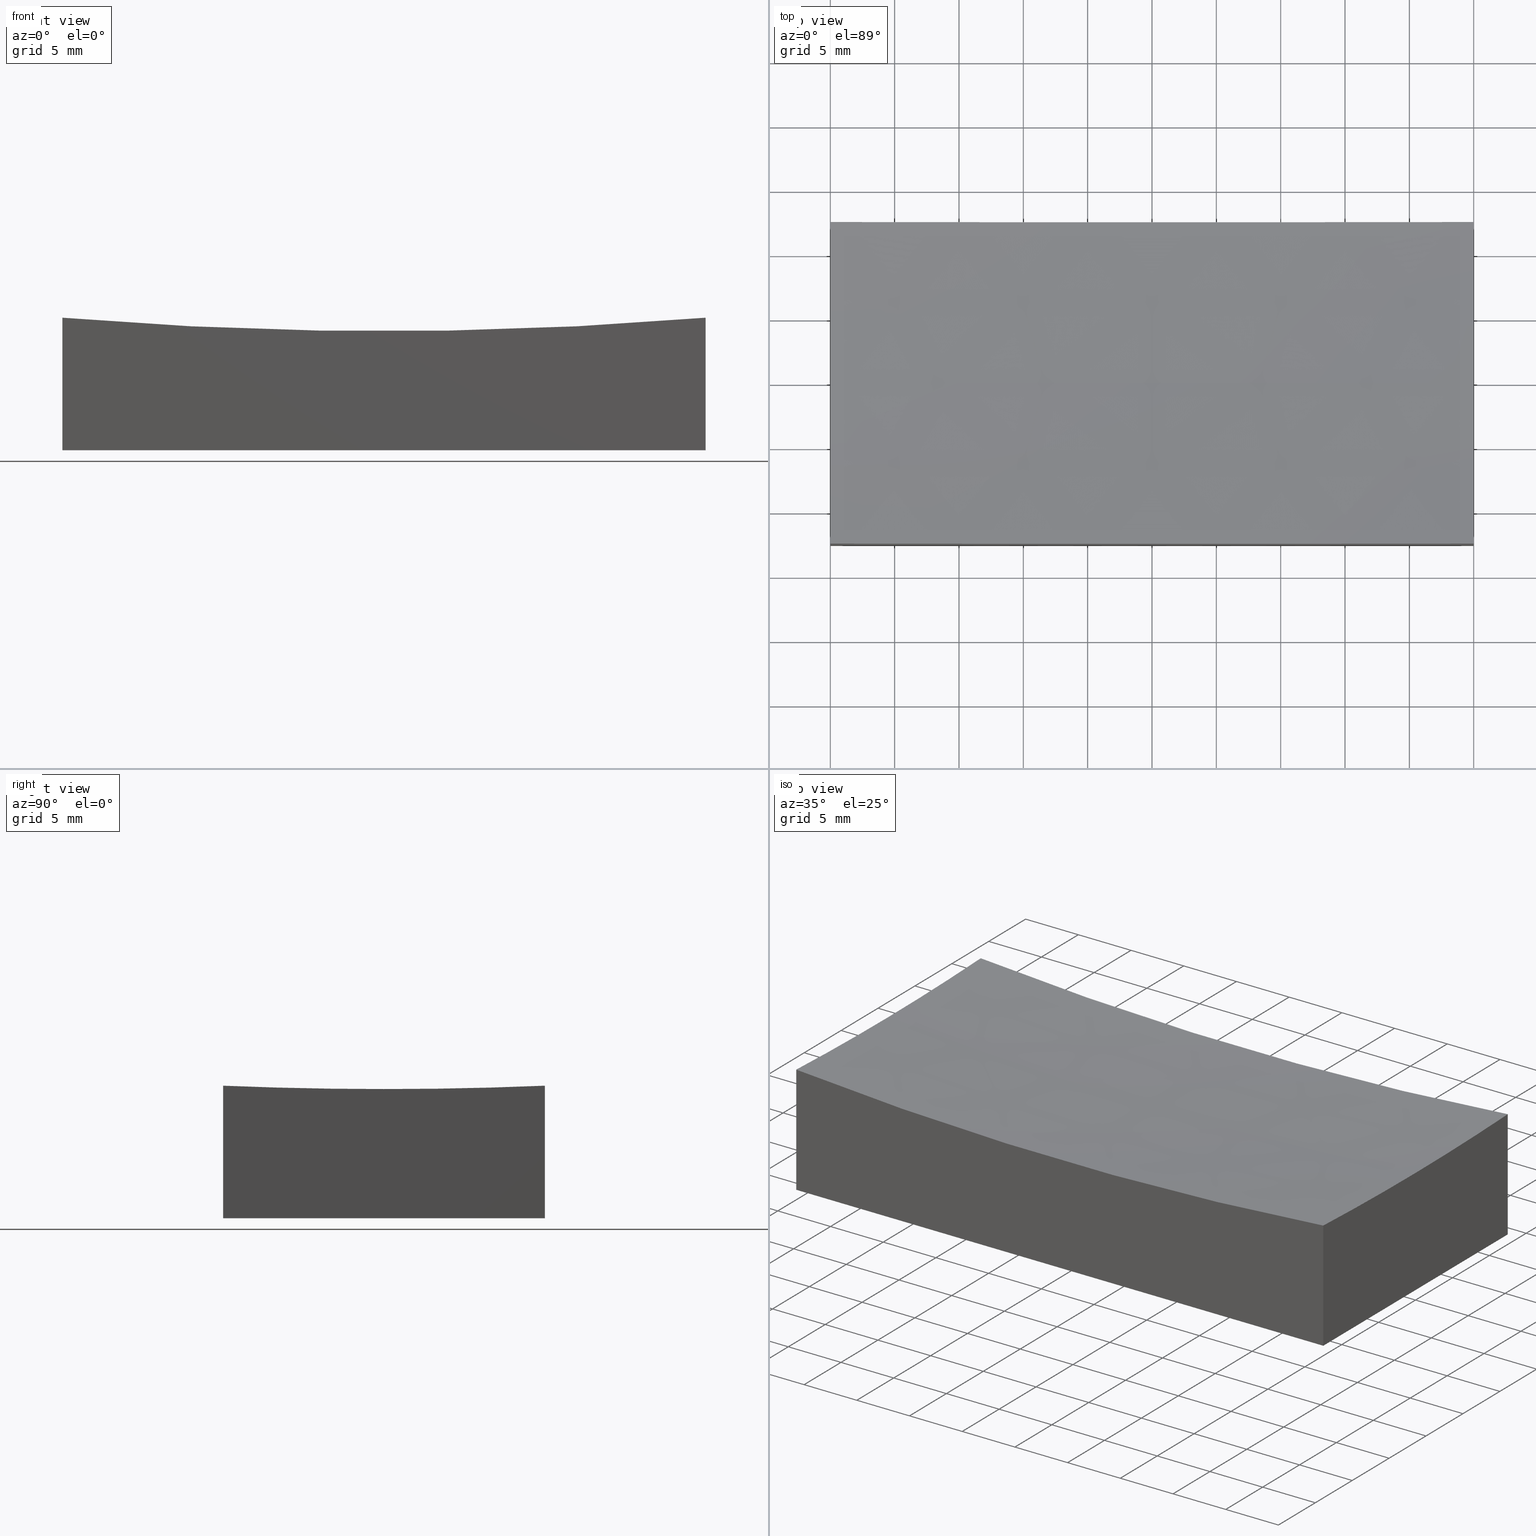
[diagram: canonical four-view strip — front | top / right | iso, engineering-drawing reading convention]
A machine part, canonical four-view strip (front | top / right | iso — engineering-drawing reading convention). The complete STEP part file that produces these views, byte-faithful:
ISO-10303-21;
HEADER;
FILE_DESCRIPTION (( 'STEP AP214' ),
    '1' );
FILE_NAME ('GM13-50x25-150.STEP',
    '2024-08-13T03:15:51',
    ( 'Windows User' ),
    ( 'P R C' ),
    'SwSTEP 2.0',
    'SolidWorks 2022',
    '' );
FILE_SCHEMA (( 'AUTOMOTIVE_DESIGN' ));
ENDSEC;

DATA;
#1 = DIRECTION ( 'NONE',  ( 0.000000000000000000, 0.000000000000000000, 1.000000000000000000 ) ) ;
#2 = VECTOR ( 'NONE', #145, 1000.000000000000000 ) ;
#3 = AXIS2_PLACEMENT_3D ( 'NONE', #167, #114, #79 ) ;
#4 = UNCERTAINTY_MEASURE_WITH_UNIT (LENGTH_MEASURE( 1.000000000000000082E-05 ), #31, 'distance_accuracy_value', 'NONE');
#5 = CARTESIAN_POINT ( 'NONE',  ( 25.00000000000000000, -6.938893903907228378E-15, 309.0000000000000000 ) ) ;
#6 = CARTESIAN_POINT ( 'NONE',  ( 0.000000000000000000, 0.000000000000000000, 309.0000000000000000 ) ) ;
#7 = EDGE_CURVE ( 'NONE', #174, #86, #236, .T. ) ;
#8 = CARTESIAN_POINT ( 'NONE',  ( -25.00000000000000000, 12.50000000000000000, 0.000000000000000000 ) ) ;
#9 = DIRECTION ( 'NONE',  ( 0.000000000000000000, -1.000000000000000000, -0.000000000000000000 ) ) ;
#10 = ORIENTED_EDGE ( 'NONE', *, *, #212, .T. ) ;
#11 = CARTESIAN_POINT ( 'NONE',  ( -25.00000000000000000, 12.50000000000000000, 15.00000000000000000 ) ) ;
#12 = VECTOR ( 'NONE', #35, 1000.000000000000000 ) ;
#13 = COLOUR_RGB ( '',1.000000000000000000, 1.000000000000000000, 1.000000000000000000 ) ;
#14 = FACE_OUTER_BOUND ( 'NONE', #175, .T. ) ;
#15 = CARTESIAN_POINT ( 'NONE',  ( -24.99999999999999645, -12.50000000000000000, 0.000000000000000000 ) ) ;
#16 =( LENGTH_UNIT ( ) NAMED_UNIT ( * ) SI_UNIT ( .MILLI., .METRE. ) );
#17 = DIRECTION ( 'NONE',  ( 8.881784197001250746E-15, 0.000000000000000000, 1.000000000000000000 ) ) ;
#18 = APPLICATION_PROTOCOL_DEFINITION ( 'draft international standard', 'automotive_design', 1998, #23 ) ;
#19 = CARTESIAN_POINT ( 'NONE',  ( -25.00000000000000000, -3.469446951953614189E-15, 309.0000000000000000 ) ) ;
#20 = AXIS2_PLACEMENT_3D ( 'NONE', #58, #108, #55 ) ;
#21 = ORIENTED_EDGE ( 'NONE', *, *, #233, .F. ) ;
#22 = MECHANICAL_DESIGN_GEOMETRIC_PRESENTATION_REPRESENTATION (  '', ( #107 ), #225 ) ;
#23 = APPLICATION_CONTEXT ( 'automotive_design' ) ;
#24 = ORIENTED_EDGE ( 'NONE', *, *, #203, .F. ) ;
#25 = CARTESIAN_POINT ( 'NONE',  ( 25.00000000000000355, 12.50000000000000000, 10.30492136628702227 ) ) ;
#26 = ORIENTED_EDGE ( 'NONE', *, *, #189, .F. ) ;
#27 = ADVANCED_FACE ( 'NONE', ( #237 ), #168, .F. ) ;
#28 = ORIENTED_EDGE ( 'NONE', *, *, #155, .T. ) ;
#29 = ORIENTED_EDGE ( 'NONE', *, *, #212, .F. ) ;
#30 = LINE ( 'NONE', #124, #150 ) ;
#31 =( LENGTH_UNIT ( ) NAMED_UNIT ( * ) SI_UNIT ( .MILLI., .METRE. ) );
#32 = AXIS2_PLACEMENT_3D ( 'NONE', #153, #1, #230 ) ;
#33 = PLANE ( 'NONE',  #136 ) ;
#34 = PLANE ( 'NONE',  #94 ) ;
#35 = DIRECTION ( 'NONE',  ( 2.775557561562891351E-16, 1.000000000000000000, -0.000000000000000000 ) ) ;
#36 = AXIS2_PLACEMENT_3D ( 'NONE', #110, #53, #148 ) ;
#37 = LINE ( 'NONE', #245, #2 ) ;
#38 = PRODUCT_RELATED_PRODUCT_CATEGORY ( 'part', '', ( #118 ) ) ;
#39 = FACE_OUTER_BOUND ( 'NONE', #214, .T. ) ;
#40 = SURFACE_SIDE_STYLE ('',( #188 ) ) ;
#41 = CARTESIAN_POINT ( 'NONE',  ( 0.000000000000000000, 0.000000000000000000, 0.000000000000000000 ) ) ;
#42 = EDGE_LOOP ( 'NONE', ( #196, #159, #117, #70 ) ) ;
#43 = FACE_OUTER_BOUND ( 'NONE', #42, .T. ) ;
#44 = CIRCLE ( 'NONE', #181, 298.9565185775349505 ) ;
#45 = PRODUCT_CONTEXT ( 'NONE', #23, 'mechanical' ) ;
#46 = AXIS2_PLACEMENT_3D ( 'NONE', #187, #208, #93 ) ;
#47 = DIRECTION ( 'NONE',  ( -1.392622700503039140E-16, 1.000000000000000000, 0.000000000000000000 ) ) ;
#48 = VERTEX_POINT ( 'NONE', #160 ) ;
#49 = ORIENTED_EDGE ( 'NONE', *, *, #151, .T. ) ;
#50 = VERTEX_POINT ( 'NONE', #240 ) ;
#51 = DIRECTION ( 'NONE',  ( -2.775557561562891351E-16, -1.000000000000000000, 0.000000000000000000 ) ) ;
#52 = CARTESIAN_POINT ( 'NONE',  ( -25.00000000000000000, -3.061616997868383043E-15, 10.04348142246502817 ) ) ;
#53 = DIRECTION ( 'NONE',  ( 1.224646799147353207E-16, -1.000000000000000000, -1.592996844355151900E-35 ) ) ;
#54 =( GEOMETRIC_REPRESENTATION_CONTEXT ( 3 ) GLOBAL_UNCERTAINTY_ASSIGNED_CONTEXT ( ( #4 ) ) GLOBAL_UNIT_ASSIGNED_CONTEXT ( ( #31, #130, #105 ) ) REPRESENTATION_CONTEXT ( 'NONE', 'WORKASPACE' ) );
#55 = DIRECTION ( 'NONE',  ( 0.000000000000000000, 0.000000000000000000, 1.000000000000000000 ) ) ;
#56 = EDGE_CURVE ( 'NONE', #97, #242, #30, .T. ) ;
#57 = CARTESIAN_POINT ( 'NONE',  ( -25.00000000000000000, 12.50000000000000000, 0.000000000000000000 ) ) ;
#58 = CARTESIAN_POINT ( 'NONE',  ( 0.000000000000000000, 0.000000000000000000, 309.0000000000000000 ) ) ;
#59 = FILL_AREA_STYLE_COLOUR ( '', #13 ) ;
#60 = PRODUCT_DEFINITION ( 'δ֪', '', #61, #65 ) ;
#61 = PRODUCT_DEFINITION_FORMATION_WITH_SPECIFIED_SOURCE ( '�κ�', '', #118, .NOT_KNOWN. ) ;
#62 = DIRECTION ( 'NONE',  ( -1.392622700503039140E-16, 1.000000000000000000, 0.000000000000000000 ) ) ;
#63 = DIRECTION ( 'NONE',  ( -0.000000000000000000, -0.000000000000000000, -1.000000000000000000 ) ) ;
#64 = ADVANCED_BREP_SHAPE_REPRESENTATION ( 'GM13-50x25-150', ( #169, #32 ), #142 ) ;
#65 = PRODUCT_DEFINITION_CONTEXT ( 'detailed design', #80, 'design' ) ;
#66 = ADVANCED_FACE ( 'NONE', ( #83 ), #141, .F. ) ;
#67 = ORIENTED_EDGE ( 'NONE', *, *, #243, .T. ) ;
#68 = ORIENTED_EDGE ( 'NONE', *, *, #106, .T. ) ;
#69 = ORIENTED_EDGE ( 'NONE', *, *, #106, .F. ) ;
#70 = ORIENTED_EDGE ( 'NONE', *, *, #193, .F. ) ;
#71 = VERTEX_POINT ( 'NONE', #25 ) ;
#72 = EDGE_CURVE ( 'NONE', #139, #158, #44, .T. ) ;
#73 = CARTESIAN_POINT ( 'NONE',  ( 24.99999999999999645, -12.50000000000000000, 10.30492136628696720 ) ) ;
#74 = CARTESIAN_POINT ( 'NONE',  ( 25.00000000000000000, 0.000000000000000000, 10.04348142246502817 ) ) ;
#75 = CARTESIAN_POINT ( 'NONE',  ( 25.00000000000000000, -6.938893903907228378E-15, 309.0000000000000000 ) ) ;
#76 = FACE_OUTER_BOUND ( 'NONE', #85, .T. ) ;
#77 = CIRCLE ( 'NONE', #186, 298.9565185775349505 ) ;
#78 = ORIENTED_EDGE ( 'NONE', *, *, #56, .F. ) ;
#79 = DIRECTION ( 'NONE',  ( 0.000000000000000000, 0.000000000000000000, -1.000000000000000000 ) ) ;
#80 = APPLICATION_CONTEXT ( 'automotive_design' ) ;
#81 = EDGE_CURVE ( 'NONE', #97, #100, #172, .T. ) ;
#82 = ORIENTED_EDGE ( 'NONE', *, *, #178, .T. ) ;
#83 = FACE_OUTER_BOUND ( 'NONE', #210, .T. ) ;
#84 = ORIENTED_EDGE ( 'NONE', *, *, #233, .T. ) ;
#85 = EDGE_LOOP ( 'NONE', ( #217, #28, #195, #29, #173 ) ) ;
#86 = VERTEX_POINT ( 'NONE', #248 ) ;
#87 = SURFACE_STYLE_USAGE ( .BOTH. , #176 ) ;
#88 = CARTESIAN_POINT ( 'NONE',  ( 0.000000000000000000, 0.000000000000000000, 309.0000000000000000 ) ) ;
#89 = VECTOR ( 'NONE', #101, 1000.000000000000000 ) ;
#90 = FACE_OUTER_BOUND ( 'NONE', #171, .T. ) ;
#91 = DIRECTION ( 'NONE',  ( 1.000000000000000000, 0.000000000000000000, 0.000000000000000000 ) ) ;
#92 =( NAMED_UNIT ( * ) SI_UNIT ( $, .STERADIAN. ) SOLID_ANGLE_UNIT ( ) );
#93 = DIRECTION ( 'NONE',  ( 0.000000000000000000, -0.000000000000000000, -1.000000000000000000 ) ) ;
#94 = AXIS2_PLACEMENT_3D ( 'NONE', #202, #164, #222 ) ;
#95 =( NAMED_UNIT ( * ) PLANE_ANGLE_UNIT ( ) SI_UNIT ( $, .RADIAN. ) );
#96 = FILL_AREA_STYLE ('',( #59 ) ) ;
#97 = VERTEX_POINT ( 'NONE', #73 ) ;
#98 = ADVANCED_FACE ( 'NONE', ( #76 ), #34, .F. ) ;
#99 = VECTOR ( 'NONE', #63, 1000.000000000000000 ) ;
#100 = VERTEX_POINT ( 'NONE', #74 ) ;
#101 = DIRECTION ( 'NONE',  ( 1.387778780781445676E-16, -1.000000000000000000, 0.000000000000000000 ) ) ;
#102 = ORIENTED_EDGE ( 'NONE', *, *, #193, .T. ) ;
#103 = AXIS2_PLACEMENT_3D ( 'NONE', #41, #119, #166 ) ;
#104 = ORIENTED_EDGE ( 'NONE', *, *, #251, .T. ) ;
#105 =( NAMED_UNIT ( * ) SI_UNIT ( $, .STERADIAN. ) SOLID_ANGLE_UNIT ( ) );
#106 = EDGE_CURVE ( 'NONE', #71, #48, #37, .T. ) ;
#107 = STYLED_ITEM ( 'NONE', ( #115 ), #64 ) ;
#108 = DIRECTION ( 'NONE',  ( 0.000000000000000000, 1.000000000000000000, -0.000000000000000000 ) ) ;
#109 = SPHERICAL_SURFACE ( 'NONE', #235, 300.0000000000000000 ) ;
#110 = CARTESIAN_POINT ( 'NONE',  ( 0.000000000000000000, 0.000000000000000000, 309.0000000000000000 ) ) ;
#111 = CIRCLE ( 'NONE', #20, 300.0000000000000000 ) ;
#112 = DIRECTION ( 'NONE',  ( 0.000000000000000000, -0.000000000000000000, 1.000000000000000000 ) ) ;
#113 = SURFACE_STYLE_USAGE ( .BOTH. , #40 ) ;
#114 = DIRECTION ( 'NONE',  ( -0.000000000000000000, 1.000000000000000000, -0.000000000000000000 ) ) ;
#115 = PRESENTATION_STYLE_ASSIGNMENT (( #113 ) ) ;
#116 = EDGE_CURVE ( 'NONE', #100, #50, #111, .T. ) ;
#117 = ORIENTED_EDGE ( 'NONE', *, *, #178, .F. ) ;
#118 = PRODUCT ( 'GM13-50x25-150', 'GM13-50x25-150', '', ( #45 ) ) ;
#119 = DIRECTION ( 'NONE',  ( -0.000000000000000000, 0.000000000000000000, 1.000000000000000000 ) ) ;
#120 = DIRECTION ( 'NONE',  ( 1.000000000000000000, -2.775557561562891351E-16, -0.000000000000000000 ) ) ;
#121 = ORIENTED_EDGE ( 'NONE', *, *, #81, .F. ) ;
#122 = ORIENTED_EDGE ( 'NONE', *, *, #72, .T. ) ;
#123 = AXIS2_PLACEMENT_3D ( 'NONE', #5, #120, #205 ) ;
#124 = CARTESIAN_POINT ( 'NONE',  ( 24.99999999999999645, -12.50000000000000000, 15.00000000000000000 ) ) ;
#125 = CIRCLE ( 'NONE', #220, 298.9565185775349505 ) ;
#126 = CARTESIAN_POINT ( 'NONE',  ( 25.00000000000000355, 12.50000000000000000, 15.00000000000000000 ) ) ;
#127 = DIRECTION ( 'NONE',  ( 0.000000000000000000, 1.000000000000000000, 0.000000000000000000 ) ) ;
#128 = DIRECTION ( 'NONE',  ( 0.000000000000000000, -1.000000000000000000, -0.000000000000000000 ) ) ;
#129 = AXIS2_PLACEMENT_3D ( 'NONE', #126, #221, #51 ) ;
#130 =( NAMED_UNIT ( * ) PLANE_ANGLE_UNIT ( ) SI_UNIT ( $, .RADIAN. ) );
#131 = LINE ( 'NONE', #204, #12 ) ;
#132 = DIRECTION ( 'NONE',  ( -0.000000000000000000, -1.000000000000000000, -0.000000000000000000 ) ) ;
#133 = SHAPE_DEFINITION_REPRESENTATION ( #227, #64 ) ;
#134 = ORIENTED_EDGE ( 'NONE', *, *, #151, .F. ) ;
#135 = PLANE ( 'NONE',  #46 ) ;
#136 = AXIS2_PLACEMENT_3D ( 'NONE', #247, #127, #112 ) ;
#137 = ORIENTED_EDGE ( 'NONE', *, *, #81, .T. ) ;
#138 = DIRECTION ( 'NONE',  ( 1.000000000000000000, 0.000000000000000000, 0.000000000000000000 ) ) ;
#139 = VERTEX_POINT ( 'NONE', #52 ) ;
#140 = CIRCLE ( 'NONE', #36, 300.0000000000000000 ) ;
#141 = PLANE ( 'NONE',  #129 ) ;
#142 =( GEOMETRIC_REPRESENTATION_CONTEXT ( 3 ) GLOBAL_UNCERTAINTY_ASSIGNED_CONTEXT ( ( #215 ) ) GLOBAL_UNIT_ASSIGNED_CONTEXT ( ( #232, #95, #252 ) ) REPRESENTATION_CONTEXT ( 'NONE', 'WORKASPACE' ) );
#143 = ADVANCED_FACE ( 'NONE', ( #90 ), #33, .F. ) ;
#144 = DIRECTION ( 'NONE',  ( -1.000000000000000000, -1.387778780781445676E-16, 0.000000000000000000 ) ) ;
#145 = DIRECTION ( 'NONE',  ( -0.000000000000000000, -0.000000000000000000, -1.000000000000000000 ) ) ;
#146 = AXIS2_PLACEMENT_3D ( 'NONE', #165, #132, #17 ) ;
#147 = LINE ( 'NONE', #11, #156 ) ;
#148 = DIRECTION ( 'NONE',  ( 1.000000000000000000, 1.224646799147353207E-16, 0.000000000000000000 ) ) ;
#149 = LINE ( 'NONE', #249, #250 ) ;
#150 = VECTOR ( 'NONE', #199, 1000.000000000000000 ) ;
#151 = EDGE_CURVE ( 'NONE', #100, #71, #77, .T. ) ;
#152 = DIRECTION ( 'NONE',  ( -1.000000000000000000, -1.387778780781445676E-16, 0.000000000000000000 ) ) ;
#153 = CARTESIAN_POINT ( 'NONE',  ( 0.000000000000000000, 0.000000000000000000, 0.000000000000000000 ) ) ;
#154 = EDGE_LOOP ( 'NONE', ( #67, #218, #216, #49, #84 ) ) ;
#155 = EDGE_CURVE ( 'NONE', #161, #174, #147, .T. ) ;
#156 = VECTOR ( 'NONE', #246, 1000.000000000000000 ) ;
#157 = VECTOR ( 'NONE', #91, 1000.000000000000000 ) ;
#158 = VERTEX_POINT ( 'NONE', #179 ) ;
#159 = ORIENTED_EDGE ( 'NONE', *, *, #251, .F. ) ;
#160 = CARTESIAN_POINT ( 'NONE',  ( 25.00000000000000355, 12.50000000000000000, 0.000000000000000000 ) ) ;
#161 = VERTEX_POINT ( 'NONE', #226 ) ;
#162 = CIRCLE ( 'NONE', #3, 299.7394702070449171 ) ;
#163 = DIRECTION ( 'NONE',  ( 1.000000000000000000, 0.000000000000000000, 0.000000000000000000 ) ) ;
#164 = DIRECTION ( 'NONE',  ( 1.000000000000000000, 1.387778780781445676E-16, -0.000000000000000000 ) ) ;
#165 = CARTESIAN_POINT ( 'NONE',  ( 0.000000000000000000, -12.49999999999999645, 309.0000000000000000 ) ) ;
#166 = DIRECTION ( 'NONE',  ( 1.000000000000000000, 0.000000000000000000, 0.000000000000000000 ) ) ;
#167 = CARTESIAN_POINT ( 'NONE',  ( 0.000000000000000000, 12.50000000000000000, 309.0000000000000000 ) ) ;
#168 = SPHERICAL_SURFACE ( 'NONE', #192, 300.0000000000000000 ) ;
#169 = MANIFOLD_SOLID_BREP ( '�г�-��ת1', #219 ) ;
#170 = ADVANCED_FACE ( 'NONE', ( #14 ), #109, .F. ) ;
#171 = EDGE_LOOP ( 'NONE', ( #24, #10, #102, #78 ) ) ;
#172 = CIRCLE ( 'NONE', #123, 298.9565185775349505 ) ;
#173 = ORIENTED_EDGE ( 'NONE', *, *, #72, .F. ) ;
#174 = VERTEX_POINT ( 'NONE', #57 ) ;
#175 = EDGE_LOOP ( 'NONE', ( #26, #122, #194, #137, #185 ) ) ;
#176 = SURFACE_SIDE_STYLE ('',( #244 ) ) ;
#177 = PRESENTATION_STYLE_ASSIGNMENT (( #87 ) ) ;
#178 = EDGE_CURVE ( 'NONE', #242, #48, #131, .T. ) ;
#179 = CARTESIAN_POINT ( 'NONE',  ( -24.99999999999998934, -12.49999999999999645, 10.30492136628702227 ) ) ;
#180 = LINE ( 'NONE', #15, #157 ) ;
#181 = AXIS2_PLACEMENT_3D ( 'NONE', #200, #144, #47 ) ;
#182 = DIRECTION ( 'NONE',  ( -2.785245401006078279E-16, -1.000000000000000000, 0.000000000000000000 ) ) ;
#183 =( NAMED_UNIT ( * ) PLANE_ANGLE_UNIT ( ) SI_UNIT ( $, .RADIAN. ) );
#184 = CARTESIAN_POINT ( 'NONE',  ( 24.99999999999999645, -12.50000000000000000, 0.000000000000000000 ) ) ;
#185 = ORIENTED_EDGE ( 'NONE', *, *, #116, .T. ) ;
#186 = AXIS2_PLACEMENT_3D ( 'NONE', #75, #224, #182 ) ;
#187 = CARTESIAN_POINT ( 'NONE',  ( -25.00000000000000000, 12.50000000000000000, 15.00000000000000000 ) ) ;
#188 = SURFACE_STYLE_FILL_AREA ( #96 ) ;
#189 = EDGE_CURVE ( 'NONE', #139, #50, #140, .T. ) ;
#190 = ORIENTED_EDGE ( 'NONE', *, *, #155, .F. ) ;
#191 = UNCERTAINTY_MEASURE_WITH_UNIT (LENGTH_MEASURE( 1.000000000000000082E-05 ), #16, 'distance_accuracy_value', 'NONE');
#192 = AXIS2_PLACEMENT_3D ( 'NONE', #6, #9, #138 ) ;
#193 = EDGE_CURVE ( 'NONE', #86, #242, #180, .T. ) ;
#194 = ORIENTED_EDGE ( 'NONE', *, *, #203, .T. ) ;
#195 = ORIENTED_EDGE ( 'NONE', *, *, #7, .T. ) ;
#196 = ORIENTED_EDGE ( 'NONE', *, *, #7, .F. ) ;
#197 = MECHANICAL_DESIGN_GEOMETRIC_PRESENTATION_REPRESENTATION (  '', ( #198 ), #54 ) ;
#198 = STYLED_ITEM ( 'NONE', ( #177 ), #169 ) ;
#199 = DIRECTION ( 'NONE',  ( -0.000000000000000000, -0.000000000000000000, -1.000000000000000000 ) ) ;
#200 = CARTESIAN_POINT ( 'NONE',  ( -25.00000000000000000, -3.469446951953614189E-15, 309.0000000000000000 ) ) ;
#201 = FILL_AREA_STYLE ('',( #228 ) ) ;
#202 = CARTESIAN_POINT ( 'NONE',  ( -25.00000000000000000, 12.50000000000000000, 15.00000000000000000 ) ) ;
#203 = EDGE_CURVE ( 'NONE', #158, #97, #213, .T. ) ;
#204 = CARTESIAN_POINT ( 'NONE',  ( 25.00000000000000355, 12.50000000000000000, 0.000000000000000000 ) ) ;
#205 = DIRECTION ( 'NONE',  ( -2.785245401006078279E-16, -1.000000000000000000, 0.000000000000000000 ) ) ;
#206 = COLOUR_RGB ( '',1.000000000000000000, 1.000000000000000000, 1.000000000000000000 ) ;
#207 = APPLICATION_PROTOCOL_DEFINITION ( 'draft international standard', 'automotive_design', 1998, #80 ) ;
#208 = DIRECTION ( 'NONE',  ( 0.000000000000000000, -1.000000000000000000, 0.000000000000000000 ) ) ;
#209 = LINE ( 'NONE', #234, #99 ) ;
#210 = EDGE_LOOP ( 'NONE', ( #121, #239, #82, #69, #134 ) ) ;
#211 = PLANE ( 'NONE',  #103 ) ;
#212 = EDGE_CURVE ( 'NONE', #158, #86, #209, .T. ) ;
#213 = CIRCLE ( 'NONE', #146, 299.7394702070449739 ) ;
#214 = EDGE_LOOP ( 'NONE', ( #21, #68, #104, #190 ) ) ;
#215 = UNCERTAINTY_MEASURE_WITH_UNIT (LENGTH_MEASURE( 1.000000000000000082E-05 ), #232, 'distance_accuracy_value', 'NONE');
#216 = ORIENTED_EDGE ( 'NONE', *, *, #116, .F. ) ;
#217 = ORIENTED_EDGE ( 'NONE', *, *, #243, .F. ) ;
#218 = ORIENTED_EDGE ( 'NONE', *, *, #189, .T. ) ;
#219 = CLOSED_SHELL ( 'NONE', ( #27, #98, #143, #66, #223, #238, #170 ) ) ;
#220 = AXIS2_PLACEMENT_3D ( 'NONE', #19, #152, #62 ) ;
#221 = DIRECTION ( 'NONE',  ( -1.000000000000000000, 2.775557561562891351E-16, 0.000000000000000000 ) ) ;
#222 = DIRECTION ( 'NONE',  ( -1.387778780781445676E-16, 1.000000000000000000, 0.000000000000000000 ) ) ;
#223 = ADVANCED_FACE ( 'NONE', ( #39 ), #135, .F. ) ;
#224 = DIRECTION ( 'NONE',  ( 1.000000000000000000, -2.775557561562891351E-16, -0.000000000000000000 ) ) ;
#225 =( GEOMETRIC_REPRESENTATION_CONTEXT ( 3 ) GLOBAL_UNCERTAINTY_ASSIGNED_CONTEXT ( ( #191 ) ) GLOBAL_UNIT_ASSIGNED_CONTEXT ( ( #16, #183, #92 ) ) REPRESENTATION_CONTEXT ( 'NONE', 'WORKASPACE' ) );
#226 = CARTESIAN_POINT ( 'NONE',  ( -25.00000000000000000, 12.50000000000000000, 10.30492136628702227 ) ) ;
#227 = PRODUCT_DEFINITION_SHAPE ( 'NONE', 'NONE',  #60 ) ;
#228 = FILL_AREA_STYLE_COLOUR ( '', #206 ) ;
#229 = DIRECTION ( 'NONE',  ( -1.000000000000000000, -0.000000000000000000, -0.000000000000000000 ) ) ;
#230 = DIRECTION ( 'NONE',  ( 1.000000000000000000, 0.000000000000000000, 0.000000000000000000 ) ) ;
#231 = PRESENTATION_LAYER_ASSIGNMENT (  '', '', ( #107 ) ) ;
#232 =( LENGTH_UNIT ( ) NAMED_UNIT ( * ) SI_UNIT ( .MILLI., .METRE. ) );
#233 = EDGE_CURVE ( 'NONE', #71, #161, #162, .T. ) ;
#234 = CARTESIAN_POINT ( 'NONE',  ( -24.99999999999999645, -12.50000000000000000, 15.00000000000000000 ) ) ;
#235 = AXIS2_PLACEMENT_3D ( 'NONE', #88, #128, #163 ) ;
#236 = LINE ( 'NONE', #8, #89 ) ;
#237 = FACE_OUTER_BOUND ( 'NONE', #154, .T. ) ;
#238 = ADVANCED_FACE ( 'NONE', ( #43 ), #211, .F. ) ;
#239 = ORIENTED_EDGE ( 'NONE', *, *, #56, .T. ) ;
#240 = CARTESIAN_POINT ( 'NONE',  ( 1.833067856807922641E-14, 0.000000000000000000, 9.000000000000007105 ) ) ;
#241 = PRESENTATION_LAYER_ASSIGNMENT (  '', '', ( #198 ) ) ;
#242 = VERTEX_POINT ( 'NONE', #184 ) ;
#243 = EDGE_CURVE ( 'NONE', #161, #139, #125, .T. ) ;
#244 = SURFACE_STYLE_FILL_AREA ( #201 ) ;
#245 = CARTESIAN_POINT ( 'NONE',  ( 25.00000000000000355, 12.50000000000000000, 15.00000000000000000 ) ) ;
#246 = DIRECTION ( 'NONE',  ( -0.000000000000000000, -0.000000000000000000, -1.000000000000000000 ) ) ;
#247 = CARTESIAN_POINT ( 'NONE',  ( -24.99999999999999645, -12.50000000000000000, 15.00000000000000000 ) ) ;
#248 = CARTESIAN_POINT ( 'NONE',  ( -24.99999999999999645, -12.50000000000000000, 0.000000000000000000 ) ) ;
#249 = CARTESIAN_POINT ( 'NONE',  ( -25.00000000000000000, 12.50000000000000000, 0.000000000000000000 ) ) ;
#250 = VECTOR ( 'NONE', #229, 1000.000000000000000 ) ;
#251 = EDGE_CURVE ( 'NONE', #48, #174, #149, .T. ) ;
#252 =( NAMED_UNIT ( * ) SI_UNIT ( $, .STERADIAN. ) SOLID_ANGLE_UNIT ( ) );
ENDSEC;
END-ISO-10303-21;
